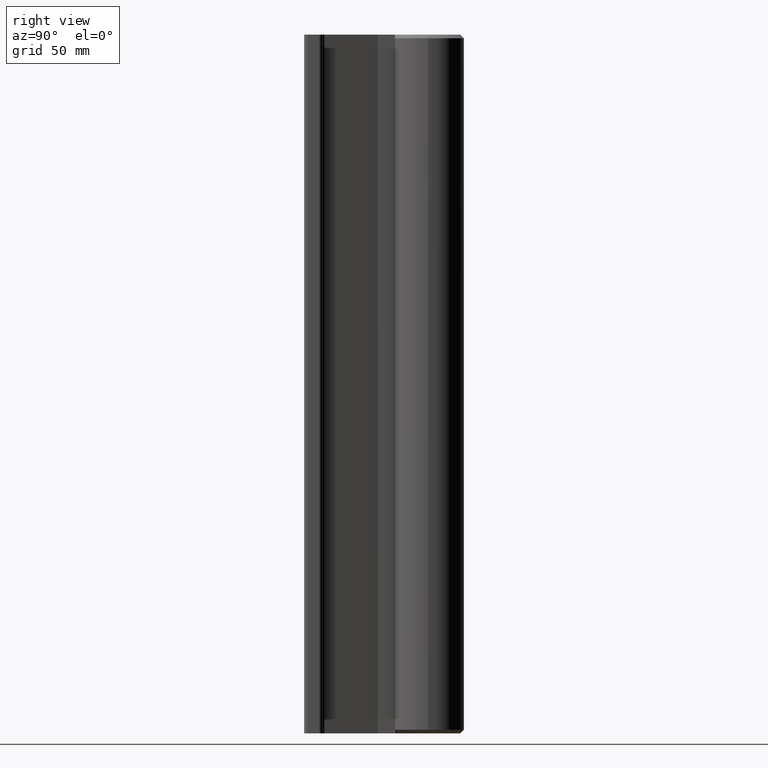
[diagram: clean part render]
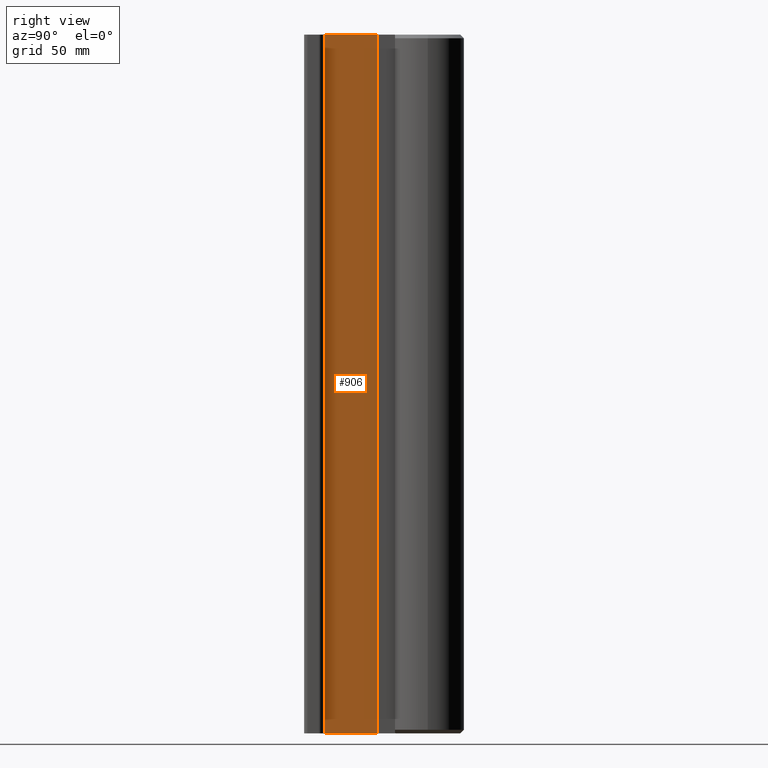
[diagram: same view with one face highlighted and labeled with its STEP entity id]
A machine part, right view. The second image highlights one B-rep face of the part: STEP entity #906.
In plain terms, the highlighted planar face has unit normal (0.9703, 0.2419, 0).
Its self-contained STEP definition (entity closure, byte-faithful):
#38 = EDGE_LOOP ( 'NONE', ( #4096, #3368, #3231, #433 ) ) ;
#200 = CARTESIAN_POINT ( 'NONE',  ( 0.2831065171000016201, 1.261932218700000385, -12.00000000000000178 ) ) ;
#248 = CARTESIAN_POINT ( 'NONE',  ( 0.5080134247000003267, 0.3598798816000001177, -12.00000000000000178 ) ) ;
#433 = ORIENTED_EDGE ( 'NONE', *, *, #1023, .F. ) ;
#529 = VECTOR ( 'NONE', #562, 39.37007874015748143 ) ;
#562 = DIRECTION ( 'NONE',  ( 0.000000000000000000, 0.000000000000000000, 1.000000000000000000 ) ) ;
#844 = CARTESIAN_POINT ( 'NONE',  ( 0.5080134247000003267, 0.3598798816000001177, -14.94793013549425531 ) ) ;
#891 = VERTEX_POINT ( 'NONE', #248 ) ;
#906 = ADVANCED_FACE ( 'NONE', ( #4014 ), #1758, .T. ) ;
#927 = CARTESIAN_POINT ( 'NONE',  ( 0.5080134247000003267, 0.3598798816000001177, -12.00000000000000178 ) ) ;
#1022 = EDGE_CURVE ( 'NONE', #1343, #891, #4120, .T. ) ;
#1023 = EDGE_CURVE ( 'NONE', #891, #3965, #2496, .T. ) ;
#1194 = DIRECTION ( 'NONE',  ( 0.9702957262934610583, 0.2419218955296214002, -0.000000000000000000 ) ) ;
#1343 = VERTEX_POINT ( 'NONE', #200 ) ;
#1425 = CARTESIAN_POINT ( 'NONE',  ( 0.5080134247000003267, 0.3598798816000001732, 0.000000000000000000 ) ) ;
#1452 = VECTOR ( 'NONE', #3768, 39.37007874015748143 ) ;
#1504 = DIRECTION ( 'NONE',  ( -0.2419218955296213724, 0.9702957262934609473, 0.000000000000000000 ) ) ;
#1583 = LINE ( 'NONE', #2185, #529 ) ;
#1729 = VECTOR ( 'NONE', #1857, 39.37007874015748854 ) ;
#1758 = PLANE ( 'NONE',  #3722 ) ;
#1857 = DIRECTION ( 'NONE',  ( -0.2419218955296214280, 0.9702957262934609473, 0.000000000000000000 ) ) ;
#2185 = CARTESIAN_POINT ( 'NONE',  ( 0.2831065171000015646, 1.261932218700000163, -14.94793013549425531 ) ) ;
#2496 = LINE ( 'NONE', #3822, #1452 ) ;
#2510 = CARTESIAN_POINT ( 'NONE',  ( 0.2831065171000015646, 1.261932218700000163, 0.000000000000000000 ) ) ;
#2610 = EDGE_CURVE ( 'NONE', #1343, #3287, #1583, .T. ) ;
#2873 = CARTESIAN_POINT ( 'NONE',  ( 0.5080134247000003267, 0.3598798816000001177, 0.000000000000000000 ) ) ;
#2924 = DIRECTION ( 'NONE',  ( 0.2419218955296213724, -0.9702957262934609473, 0.000000000000000000 ) ) ;
#3231 = ORIENTED_EDGE ( 'NONE', *, *, #3252, .F. ) ;
#3252 = EDGE_CURVE ( 'NONE', #3965, #3287, #3809, .T. ) ;
#3287 = VERTEX_POINT ( 'NONE', #2510 ) ;
#3368 = ORIENTED_EDGE ( 'NONE', *, *, #2610, .T. ) ;
#3458 = VECTOR ( 'NONE', #2924, 39.37007874015748854 ) ;
#3722 = AXIS2_PLACEMENT_3D ( 'NONE', #844, #1194, #1504 ) ;
#3768 = DIRECTION ( 'NONE',  ( 0.000000000000000000, 0.000000000000000000, 1.000000000000000000 ) ) ;
#3809 = LINE ( 'NONE', #2873, #1729 ) ;
#3822 = CARTESIAN_POINT ( 'NONE',  ( 0.5080134247000003267, 0.3598798816000001177, -14.94793013549425531 ) ) ;
#3965 = VERTEX_POINT ( 'NONE', #1425 ) ;
#4014 = FACE_OUTER_BOUND ( 'NONE', #38, .T. ) ;
#4096 = ORIENTED_EDGE ( 'NONE', *, *, #1022, .F. ) ;
#4120 = LINE ( 'NONE', #927, #3458 ) ;